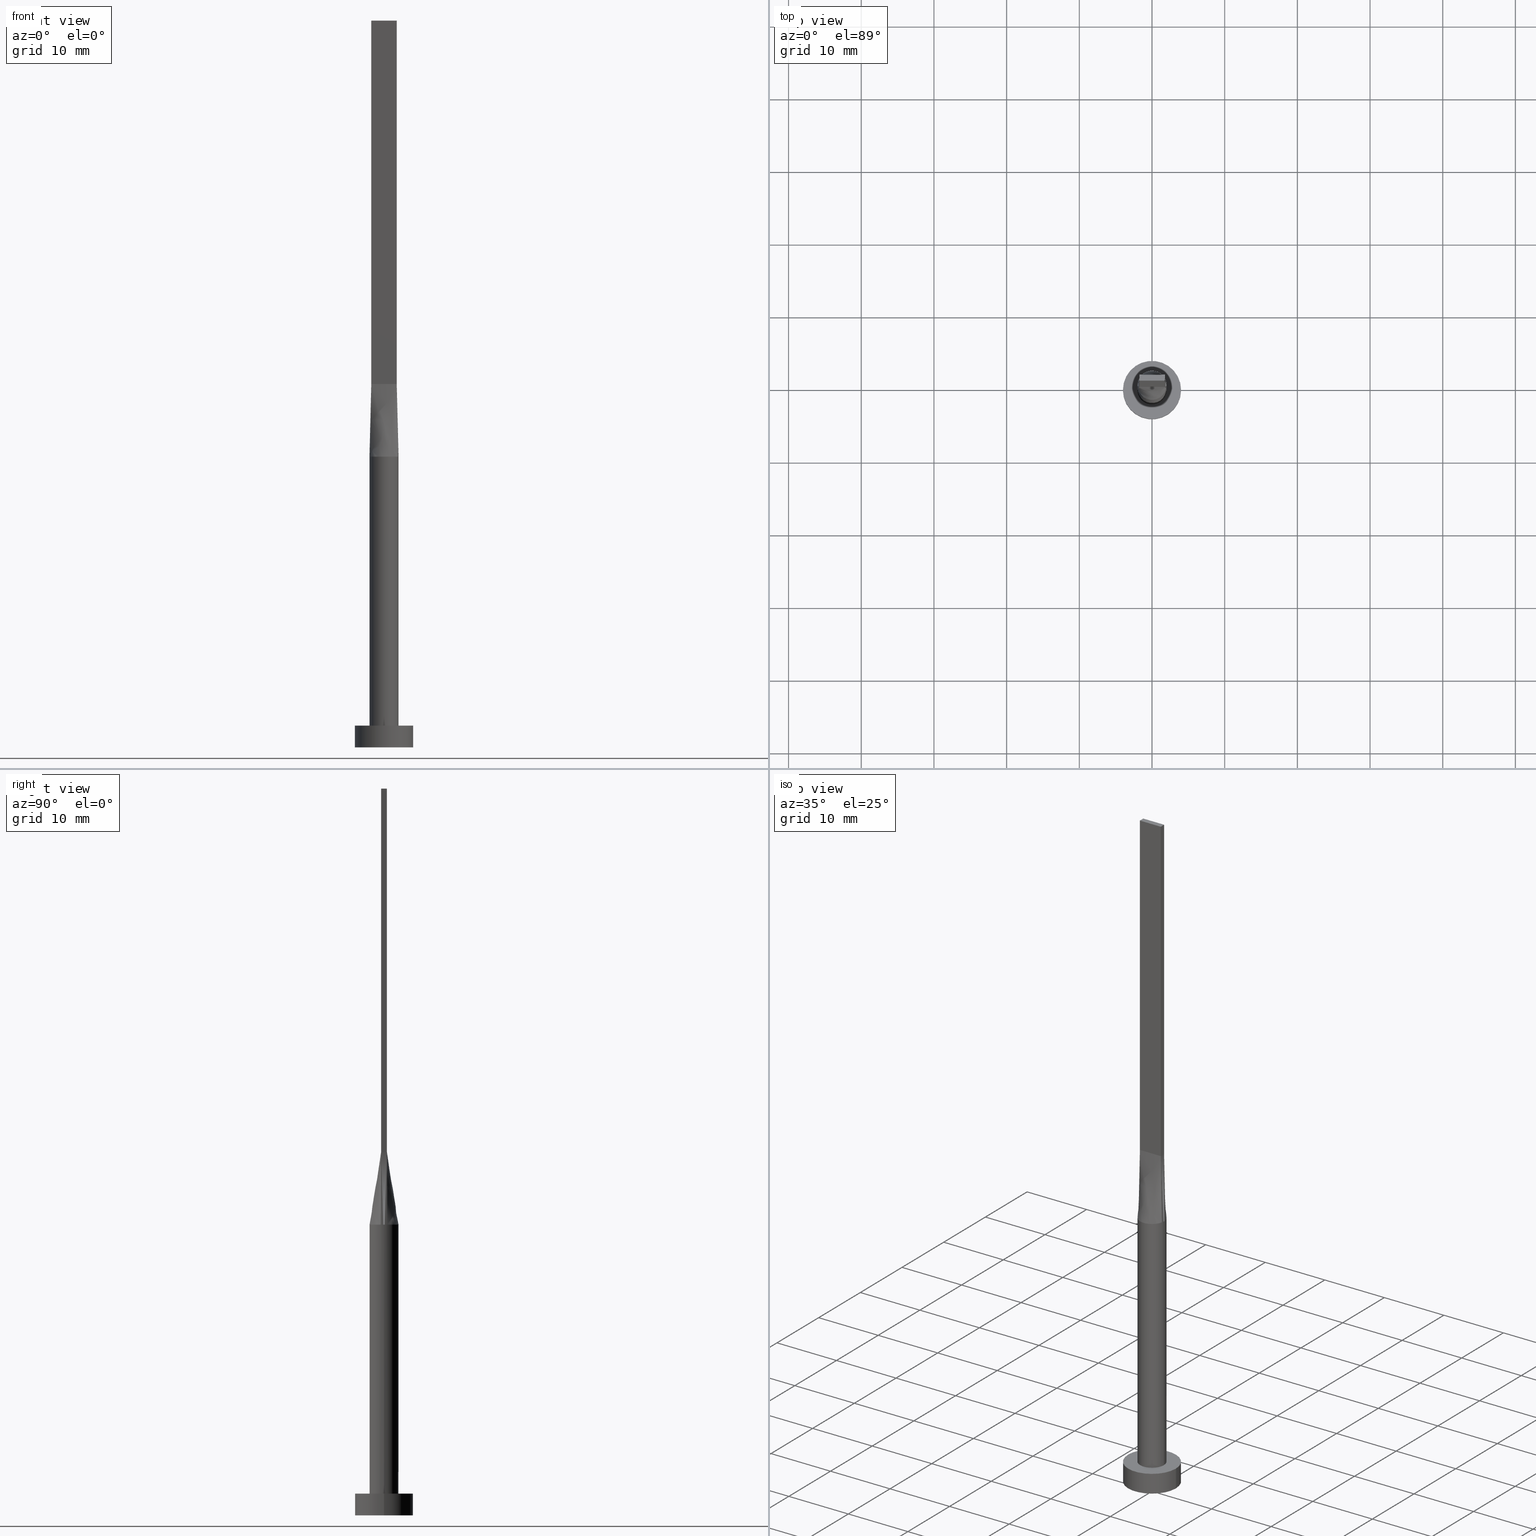
[diagram: canonical four-view strip — front | top / right | iso, engineering-drawing reading convention]
A machine part, canonical four-view strip (front | top / right | iso — engineering-drawing reading convention). The complete STEP part file that produces these views, byte-faithful:
ISO-10303-21;
HEADER;
FILE_DESCRIPTION (( 'STEP AP203' ),
    '1' );
FILE_NAME ('ae8e.STEP',
    '2026-02-12T09:07:10',
    ( '' ),
    ( '' ),
    'SwSTEP 2.0',
    'SolidWorks 2019',
    '' );
FILE_SCHEMA (( 'CONFIG_CONTROL_DESIGN' ));
ENDSEC;

DATA;
#1 = VECTOR ( 'NONE', #144, 1000.000000000000114 ) ;
#2 = CC_DESIGN_APPROVAL ( #551, ( #561 ) ) ;
#3 = CYLINDRICAL_SURFACE ( 'NONE', #318, 2.000000000000000000 ) ;
#4 = CARTESIAN_POINT ( 'NONE',  ( -1.750000000000000000, -0.3999999999999996891, 50.00000000000000000 ) ) ;
#5 = CARTESIAN_POINT ( 'NONE',  ( 0.000000000000000000, 0.000000000000000000, 100.0000000000000000 ) ) ;
#6 = CARTESIAN_POINT ( 'NONE',  ( 4.000000000000000000, 4.898587196589412829E-16, 0.000000000000000000 ) ) ;
#7 = PRODUCT_DEFINITION ( 'NEZN�M�', '', #388, #333 ) ;
#8 = CARTESIAN_POINT ( 'NONE',  ( 1.982817607920046798, 0.3008345008579150770, 40.00000000000000000 ) ) ;
#9 = CARTESIAN_POINT ( 'NONE',  ( 1.949907982895221048, -0.4456935569447296186, 40.00000000000000000 ) ) ;
#10 = AXIS2_PLACEMENT_3D ( 'NONE', #153, #330, #568 ) ;
#11 = CARTESIAN_POINT ( 'NONE',  ( -1.749999999999999778, 0.4000000000000003553, 50.00000000000000000 ) ) ;
#12 = CARTESIAN_POINT ( 'NONE',  ( 0.7291666666666676289, -0.3999999999999997446, 50.00000000000000000 ) ) ;
#13 = CARTESIAN_POINT ( 'NONE',  ( 1.749999999999999778, 0.1333333333333336645, 50.00000000000000000 ) ) ;
#14 = DIRECTION ( 'NONE',  ( 0.000000000000000000, 0.000000000000000000, 1.000000000000000000 ) ) ;
#15 = EDGE_CURVE ( 'NONE', #493, #566, #306, .T. ) ;
#16 = CARTESIAN_POINT ( 'NONE',  ( 0.2916666666666679064, -0.3999999999999997446, 50.00000000000000000 ) ) ;
#17 = CARTESIAN_POINT ( 'NONE',  ( -1.982817607920047243, -0.3008345008579154101, 40.00000000000000000 ) ) ;
#18 = DIRECTION ( 'NONE',  ( -0.000000000000000000, -0.000000000000000000, -1.000000000000000000 ) ) ;
#19 = AXIS2_PLACEMENT_3D ( 'NONE', #369, #71, #29 ) ;
#20 = AXIS2_PLACEMENT_3D ( 'NONE', #456, #324, #458 ) ;
#21 = CYLINDRICAL_SURFACE ( 'NONE', #133, 2.000000000000000000 ) ;
#22 = PERSON_AND_ORGANIZATION ( #246, #436 ) ;
#23 = PERSON_AND_ORGANIZATION_ROLE ( 'classification_officer' ) ;
#24 = ORIENTED_EDGE ( 'NONE', *, *, #416, .T. ) ;
#25 = CYLINDRICAL_SURFACE ( 'NONE', #294, 4.000000000000000000 ) ;
#26 = ORIENTED_EDGE ( 'NONE', *, *, #130, .T. ) ;
#27 = CARTESIAN_POINT ( 'NONE',  ( -1.542259513637947999, 1.293837904363075442, 40.00000000000000000 ) ) ;
#28 = CC_DESIGN_DATE_AND_TIME_ASSIGNMENT ( #485, #304, ( #7 ) ) ;
#29 = DIRECTION ( 'NONE',  ( 1.000000000000000000, 0.000000000000000000, -0.000000000000000000 ) ) ;
#30 = DIRECTION ( 'NONE',  ( 0.000000000000000000, 0.000000000000000000, 1.000000000000000000 ) ) ;
#31 = ORIENTED_EDGE ( 'NONE', *, *, #111, .F. ) ;
#32 = DIRECTION ( 'NONE',  ( -0.000000000000000000, -0.000000000000000000, -1.000000000000000000 ) ) ;
#33 = CARTESIAN_POINT ( 'NONE',  ( -1.949717013143734468, 0.4456496030042821910, 40.00000000000000000 ) ) ;
#34 = EDGE_LOOP ( 'NONE', ( #355, #497, #78, #47 ) ) ;
#35 = DIRECTION ( 'NONE',  ( 0.000000000000000000, 0.000000000000000000, 1.000000000000000000 ) ) ;
#36 = EDGE_CURVE ( 'NONE', #79, #67, #258, .T. ) ;
#37 = CARTESIAN_POINT ( 'NONE',  ( -1.750000000000000000, -0.3999999999999996891, 100.0000000000000000 ) ) ;
#38 = ORIENTED_EDGE ( 'NONE', *, *, #329, .F. ) ;
#39 = CARTESIAN_POINT ( 'NONE',  ( -1.002818635501954381, 1.749193953526918532, 40.00000000000000711 ) ) ;
#40 = ORIENTED_EDGE ( 'NONE', *, *, #463, .F. ) ;
#41 = CIRCLE ( 'NONE', #442, 4.000000000000000000 ) ;
#42 = CARTESIAN_POINT ( 'NONE',  ( -1.209404336647713851, 1.609323485403446830, 40.00000000000000000 ) ) ;
#43 = CARTESIAN_POINT ( 'NONE',  ( 1.458333333333332593, 0.4000000000000003553, 50.00000000000000000 ) ) ;
#44 = CALENDAR_DATE ( 2026, 12, 2 ) ;
#45 = EDGE_CURVE ( 'NONE', #346, #575, #207, .T. ) ;
#46 = CARTESIAN_POINT ( 'NONE',  ( -1.854458107241758746, 0.7741483657718513101, 40.00000000000000000 ) ) ;
#47 = ORIENTED_EDGE ( 'NONE', *, *, #240, .T. ) ;
#48 = VECTOR ( 'NONE', #366, 1000.000000000000000 ) ;
#49 = UNCERTAINTY_MEASURE_WITH_UNIT (LENGTH_MEASURE( 1.000000000000000082E-05 ), #564, 'distance_accuracy_value', 'NONE');
#50 = CARTESIAN_POINT ( 'NONE',  ( 0.000000000000000000, 0.000000000000000000, 40.00000000000000000 ) ) ;
#51 = APPLICATION_CONTEXT ( 'configuration controlled 3d designs of mechanical parts and assemblies' ) ;
#52 = CARTESIAN_POINT ( 'NONE',  ( 0.1458333333333345638, -0.3999999999999997446, 50.00000000000000711 ) ) ;
#53 = FACE_OUTER_BOUND ( 'NONE', #492, .T. ) ;
#54 = CARTESIAN_POINT ( 'NONE',  ( 1.982817607920046798, -0.3008345008579155211, 40.00000000000000000 ) ) ;
#55 = CARTESIAN_POINT ( 'NONE',  ( 1.458333333333333703, -0.3999999999999997446, 50.00000000000000000 ) ) ;
#56 = CIRCLE ( 'NONE', #277, 2.000000000000000000 ) ;
#57 = CARTESIAN_POINT ( 'NONE',  ( -1.749999999999999778, 0.1333333333333336645, 50.00000000000000000 ) ) ;
#58 = CIRCLE ( 'NONE', #122, 2.000000000000000000 ) ;
#59 = CARTESIAN_POINT ( 'NONE',  ( -1.949896596863728293, 0.4456908869437610776, 40.00000000000000000 ) ) ;
#60 = CARTESIAN_POINT ( 'NONE',  ( 1.166666666666667407, -0.3999999999999997446, 50.00000000000000000 ) ) ;
#61 = PLANE ( 'NONE',  #20 ) ;
#62 = AXIS2_PLACEMENT_3D ( 'NONE', #120, #131, #256 ) ;
#63 = PERSON_AND_ORGANIZATION_ROLE ( 'creator' ) ;
#64 = DIRECTION ( 'NONE',  ( 0.000000000000000000, -0.000000000000000000, -1.000000000000000000 ) ) ;
#65 = DIRECTION ( 'NONE',  ( 1.000000000000000000, 0.000000000000000000, 0.000000000000000000 ) ) ;
#66 = PERSON_AND_ORGANIZATION ( #246, #436 ) ;
#67 = VERTEX_POINT ( 'NONE', #392 ) ;
#68 = DIRECTION ( 'NONE',  ( -0.01996751149463110026, 0.004564002627344216668, 0.9997902121768992290 ) ) ;
#69 = ADVANCED_FACE ( 'NONE', ( #565 ), #25, .T. ) ;
#70 = CARTESIAN_POINT ( 'NONE',  ( -1.604166666666666519, -0.3999999999999996891, 50.00000000000000000 ) ) ;
#71 = DIRECTION ( 'NONE',  ( 0.000000000000000000, 0.000000000000000000, 1.000000000000000000 ) ) ;
#72 = DIRECTION ( 'NONE',  ( -2.710505431213761085E-16, 1.000000000000000000, -0.000000000000000000 ) ) ;
#73 = ORIENTED_EDGE ( 'NONE', *, *, #240, .F. ) ;
#74 = ORIENTED_EDGE ( 'NONE', *, *, #205, .F. ) ;
#75 = CARTESIAN_POINT ( 'NONE',  ( -1.604166666666666519, 0.4000000000000004108, 50.00000000000000000 ) ) ;
#76 = CARTESIAN_POINT ( 'NONE',  ( 0.000000000000000000, 0.000000000000000000, 3.000000000000000000 ) ) ;
#77 = PERSON_AND_ORGANIZATION ( #246, #436 ) ;
#78 = ORIENTED_EDGE ( 'NONE', *, *, #145, .F. ) ;
#79 = VERTEX_POINT ( 'NONE', #336 ) ;
#80 = VECTOR ( 'NONE', #543, 1000.000000000000000 ) ;
#81 = APPROVAL_DATE_TIME ( #499, #551 ) ;
#82 = CARTESIAN_POINT ( 'NONE',  ( 0.000000000000000000, 0.000000000000000000, 3.000000000000000000 ) ) ;
#83 = ORIENTED_EDGE ( 'NONE', *, *, #567, .T. ) ;
#84 = CARTESIAN_POINT ( 'NONE',  ( 0.000000000000000000, 0.000000000000000000, 40.00000000000000000 ) ) ;
#85 = CARTESIAN_POINT ( 'NONE',  ( 1.949877516600953875, 0.4456865912299994847, 40.00000000000000000 ) ) ;
#86 = CC_DESIGN_DATE_AND_TIME_ASSIGNMENT ( #448, #181, ( #561 ) ) ;
#87 = ORIENTED_EDGE ( 'NONE', *, *, #103, .F. ) ;
#88 = CARTESIAN_POINT ( 'NONE',  ( 0.2916666666666662966, 0.4000000000000004108, 50.00000000000000711 ) ) ;
#89 = DIRECTION ( 'NONE',  ( -0.000000000000000000, -0.000000000000000000, -1.000000000000000000 ) ) ;
#90 = CARTESIAN_POINT ( 'NONE',  ( 1.854458107241759190, 0.7741483657718509770, 40.00000000000000711 ) ) ;
#91 = ORIENTED_EDGE ( 'NONE', *, *, #526, .T. ) ;
#92 = CARTESIAN_POINT ( 'NONE',  ( -0.5307032259479420588, 1.945168061822314609, 40.00000000000001421 ) ) ;
#93 = VECTOR ( 'NONE', #18, 1000.000000000000000 ) ;
#94 = CARTESIAN_POINT ( 'NONE',  ( 1.002818635501954603, 1.749193953526918088, 40.00000000000000711 ) ) ;
#95 = ORIENTED_EDGE ( 'NONE', *, *, #103, .T. ) ;
#96 = ADVANCED_FACE ( 'NONE', ( #382 ), #386, .F. ) ;
#97 = CARTESIAN_POINT ( 'NONE',  ( 1.949877516600953875, 0.4456865912299994847, 40.00000000000000000 ) ) ;
#98 = CARTESIAN_POINT ( 'NONE',  ( -1.849858506571867345, -0.4228248015021409678, 45.00000000000000000 ) ) ;
#99 = CALENDAR_DATE ( 2026, 12, 2 ) ;
#100 = CARTESIAN_POINT ( 'NONE',  ( -1.749999999999999778, 0.4000000000000003553, 50.00000000000000000 ) ) ;
#101 = VERTEX_POINT ( 'NONE', #487 ) ;
#102 = CIRCLE ( 'NONE', #62, 2.000000000000000000 ) ;
#103 = EDGE_CURVE ( 'NONE', #255, #344, #554, .T. ) ;
#104 = PLANE ( 'NONE',  #112 ) ;
#105 = DIRECTION ( 'NONE',  ( -0.000000000000000000, -0.000000000000000000, -1.000000000000000000 ) ) ;
#106 = CARTESIAN_POINT ( 'NONE',  ( 1.949717013143734690, 0.4456496030042815248, 40.00000000000000000 ) ) ;
#107 = CARTESIAN_POINT ( 'NONE',  ( -1.002818635501955047, -1.749193953526917866, 40.00000000000000711 ) ) ;
#108 = CARTESIAN_POINT ( 'NONE',  ( 1.002818635501955047, -1.749193953526917866, 40.00000000000000711 ) ) ;
#109 = DIRECTION ( 'NONE',  ( 1.000000000000000000, 0.000000000000000000, 0.000000000000000000 ) ) ;
#110 = LINE ( 'NONE', #279, #498 ) ;
#111 = EDGE_CURVE ( 'NONE', #525, #488, #527, .T. ) ;
#112 = AXIS2_PLACEMENT_3D ( 'NONE', #537, #282, #542 ) ;
#113 = CARTESIAN_POINT ( 'NONE',  ( -4.000000000000000000, 0.000000000000000000, 3.000000000000000000 ) ) ;
#114 = LINE ( 'NONE', #159, #191 ) ;
#115 = COORDINATED_UNIVERSAL_TIME_OFFSET ( 1, 0, .AHEAD. ) ;
#116 = CARTESIAN_POINT ( 'NONE',  ( 1.749999999999999778, 0.4000000000000003553, 100.0000000000000000 ) ) ;
#117 = DIRECTION ( 'NONE',  ( -1.000000000000000000, 0.000000000000000000, 0.000000000000000000 ) ) ;
#118 = EDGE_CURVE ( 'NONE', #302, #454, #132, .T. ) ;
#119 = ORIENTED_EDGE ( 'NONE', *, *, #374, .T. ) ;
#120 = CARTESIAN_POINT ( 'NONE',  ( 0.000000000000000000, 0.000000000000000000, 40.00000000000000000 ) ) ;
#121 = ORIENTED_EDGE ( 'NONE', *, *, #338, .T. ) ;
#122 = AXIS2_PLACEMENT_3D ( 'NONE', #253, #259, #339 ) ;
#123 = APPROVAL_ROLE ( '' ) ;
#124 = ORIENTED_EDGE ( 'NONE', *, *, #303, .T. ) ;
#125 = CARTESIAN_POINT ( 'NONE',  ( -1.020833333333333259, 0.4000000000000004108, 50.00000000000000000 ) ) ;
#126 = PERSON_AND_ORGANIZATION ( #246, #436 ) ;
#127 = ORIENTED_EDGE ( 'NONE', *, *, #139, .F. ) ;
#128 = ORIENTED_EDGE ( 'NONE', *, *, #118, .T. ) ;
#129 = CARTESIAN_POINT ( 'NONE',  ( -1.002818635501954381, 1.749193953526918532, 40.00000000000000711 ) ) ;
#130 = EDGE_CURVE ( 'NONE', #346, #270, #102, .T. ) ;
#131 = DIRECTION ( 'NONE',  ( 0.000000000000000000, 0.000000000000000000, 1.000000000000000000 ) ) ;
#132 = CIRCLE ( 'NONE', #452, 2.000000000000000000 ) ;
#133 = AXIS2_PLACEMENT_3D ( 'NONE', #552, #161, #405 ) ;
#134 = ORIENTED_EDGE ( 'NONE', *, *, #15, .T. ) ;
#135 = CARTESIAN_POINT ( 'NONE',  ( 1.604166666666665630, 0.4000000000000003553, 50.00000000000000000 ) ) ;
#136 = CARTESIAN_POINT ( 'NONE',  ( -0.2657394870669756437, 1.999999999999999556, 39.99999999999999289 ) ) ;
#137 = DIRECTION ( 'NONE',  ( -0.000000000000000000, -0.000000000000000000, -1.000000000000000000 ) ) ;
#138 = CARTESIAN_POINT ( 'NONE',  ( 0.7291666666666661856, 0.4000000000000004108, 50.00000000000000711 ) ) ;
#139 = EDGE_CURVE ( 'NONE', #494, #101, #41, .T. ) ;
#140 = ORIENTED_EDGE ( 'NONE', *, *, #45, .F. ) ;
#141 = CIRCLE ( 'NONE', #288, 2.000000000000000000 ) ;
#142 = APPROVAL_PERSON_ORGANIZATION ( #232, #551, #569 ) ;
#143 = EDGE_LOOP ( 'NONE', ( #221, #385, #321, #562 ) ) ;
#144 = DIRECTION ( 'NONE',  ( -0.01996751149463110026, -0.004564002627344275649, -0.9997902121768992290 ) ) ;
#145 = EDGE_CURVE ( 'NONE', #566, #488, #114, .T. ) ;
#146 = CARTESIAN_POINT ( 'NONE',  ( 1.750000000000000000, -0.3999999999999996891, 100.0000000000000000 ) ) ;
#147 = FACE_BOUND ( 'NONE', #438, .T. ) ;
#148 = CARTESIAN_POINT ( 'NONE',  ( -1.209404336647714739, -1.609323485403446607, 39.99999999999998579 ) ) ;
#149 = CARTESIAN_POINT ( 'NONE',  ( 1.209404336647714517, -1.609323485403446385, 40.00000000000000000 ) ) ;
#150 = LINE ( 'NONE', #203, #93 ) ;
#151 = FACE_OUTER_BOUND ( 'NONE', #397, .T. ) ;
#152 = EDGE_CURVE ( 'NONE', #101, #494, #519, .T. ) ;
#153 = CARTESIAN_POINT ( 'NONE',  ( 0.000000000000000000, 0.000000000000000000, 3.000000000000000000 ) ) ;
#154 = VECTOR ( 'NONE', #261, 1000.000000000000000 ) ;
#155 = CARTESIAN_POINT ( 'NONE',  ( 1.750000000000000000, -0.3999999999999996891, 50.00000000000000000 ) ) ;
#156 = AXIS2_PLACEMENT_3D ( 'NONE', #116, #476, #64 ) ;
#157 = VECTOR ( 'NONE', #72, 1000.000000000000000 ) ;
#158 = PERSON_AND_ORGANIZATION_ROLE ( 'design_owner' ) ;
#159 = CARTESIAN_POINT ( 'NONE',  ( -1.750000000000000000, -0.3999999999999996891, 50.00000000000000000 ) ) ;
#160 = ADVANCED_FACE ( 'NONE', ( #53 ), #269, .T. ) ;
#161 = DIRECTION ( 'NONE',  ( -0.000000000000000000, -0.000000000000000000, -1.000000000000000000 ) ) ;
#162 =( NAMED_UNIT ( * ) PLANE_ANGLE_UNIT ( ) SI_UNIT ( $, .RADIAN. ) );
#163 = CARTESIAN_POINT ( 'NONE',  ( 0.000000000000000000, 0.000000000000000000, 3.000000000000000000 ) ) ;
#164 = AXIS2_PLACEMENT_3D ( 'NONE', #82, #220, #166 ) ;
#165 = FACE_OUTER_BOUND ( 'NONE', #400, .T. ) ;
#166 = DIRECTION ( 'NONE',  ( 1.000000000000000000, 0.000000000000000000, 0.000000000000000000 ) ) ;
#167 = CARTESIAN_POINT ( 'NONE',  ( -1.166666666666666519, 0.4000000000000004108, 50.00000000000000000 ) ) ;
#168 = VECTOR ( 'NONE', #117, 1000.000000000000000 ) ;
#169 = VECTOR ( 'NONE', #105, 1000.000000000000000 ) ;
#170 = CARTESIAN_POINT ( 'NONE',  ( -1.669156890509896796, -1.119033439449083733, 40.00000000000000000 ) ) ;
#171 = CARTESIAN_POINT ( 'NONE',  ( 0.000000000000000000, 0.000000000000000000, 0.000000000000000000 ) ) ;
#172 = ORIENTED_EDGE ( 'NONE', *, *, #15, .F. ) ;
#173 = CARTESIAN_POINT ( 'NONE',  ( -1.750000000000000000, -0.3999999999999996891, 100.0000000000000000 ) ) ;
#174 = ORIENTED_EDGE ( 'NONE', *, *, #198, .F. ) ;
#175 = CALENDAR_DATE ( 2026, 12, 2 ) ;
#176 = PRODUCT_RELATED_PRODUCT_CATEGORY ( 'detail', '', ( #178 ) ) ;
#177 = ORIENTED_EDGE ( 'NONE', *, *, #36, .T. ) ;
#178 = PRODUCT ( 'ae8e', 'ae8e', '', ( #420 ) ) ;
#179 = CARTESIAN_POINT ( 'NONE',  ( -1.669156890509896796, 1.119033439449084399, 40.00000000000000000 ) ) ;
#180 = EDGE_CURVE ( 'NONE', #270, #454, #150, .T. ) ;
#181 = DATE_TIME_ROLE ( 'classification_date' ) ;
#182 = ORIENTED_EDGE ( 'NONE', *, *, #186, .T. ) ;
#183 = B_SPLINE_SURFACE_WITH_KNOTS ( 'NONE', 3, 1, ( 
 ( #188, #415 ),
 ( #54, #280 ),
 ( #457, #237 ),
 ( #407, #13 ),
 ( #8, #506 ),
 ( #106, #283 ) ),
 .UNSPECIFIED., .F., .F., .F.,
 ( 4, 2, 4 ),
 ( 2, 2 ),
 ( 0.000000000000000000, 0.5000000000000000000, 1.000000000000000000 ),
 ( 0.000000000000000000, 1.000000000000000000 ),
 .UNSPECIFIED. ) ;
#184 = CARTESIAN_POINT ( 'NONE',  ( 0.5833333333333328152, 0.4000000000000004108, 50.00000000000000711 ) ) ;
#185 = CIRCLE ( 'NONE', #331, 2.000000000000000000 ) ;
#186 = EDGE_CURVE ( 'NONE', #344, #443, #379, .T. ) ;
#187 = CARTESIAN_POINT ( 'NONE',  ( 0.5833333333333344806, -0.3999999999999997446, 50.00000000000000000 ) ) ;
#188 = CARTESIAN_POINT ( 'NONE',  ( 1.949717013143734690, -0.4456496030042819689, 40.00000000000000000 ) ) ;
#189 = LINE ( 'NONE', #100, #377 ) ;
#190 = LINE ( 'NONE', #512, #169 ) ;
#191 = VECTOR ( 'NONE', #469, 1000.000000000000000 ) ;
#192 = VECTOR ( 'NONE', #200, 1000.000000000000000 ) ;
#193 = DIRECTION ( 'NONE',  ( -1.000000000000000000, -2.710505431213761085E-16, 0.000000000000000000 ) ) ;
#194 = CC_DESIGN_SECURITY_CLASSIFICATION ( #561, ( #388 ) ) ;
#195 = ADVANCED_BREP_SHAPE_REPRESENTATION ( 'ae8e', ( #208, #300 ), #243 ) ;
#196 = CARTESIAN_POINT ( 'NONE',  ( -1.749999999999999778, 0.4000000000000003553, 100.0000000000000000 ) ) ;
#197 = PLANE ( 'NONE',  #19 ) ;
#198 = EDGE_CURVE ( 'NONE', #317, #575, #409, .T. ) ;
#199 = LINE ( 'NONE', #202, #532 ) ;
#200 = DIRECTION ( 'NONE',  ( -2.710505431213761085E-16, -1.000000000000000000, 0.000000000000000000 ) ) ;
#201 = CARTESIAN_POINT ( 'NONE',  ( 1.749999999999999778, 0.4000000000000003553, 100.0000000000000000 ) ) ;
#202 = CARTESIAN_POINT ( 'NONE',  ( 1.849858506571867123, 0.4228248015021409678, 45.00000000000000000 ) ) ;
#203 = CARTESIAN_POINT ( 'NONE',  ( -2.000000000000000000, 0.000000000000000000, 40.00000000000000000 ) ) ;
#204 = COORDINATED_UNIVERSAL_TIME_OFFSET ( 1, 0, .AHEAD. ) ;
#205 = EDGE_CURVE ( 'NONE', #443, #493, #510, .T. ) ;
#206 = PERSON_AND_ORGANIZATION_ROLE ( 'design_supplier' ) ;
#207 = LINE ( 'NONE', #518, #579 ) ;
#208 = MANIFOLD_SOLID_BREP ( 'P�idat vysunut�m5', #544 ) ;
#209 = CARTESIAN_POINT ( 'NONE',  ( -1.542259513637948887, -1.293837904363074331, 40.00000000000000000 ) ) ;
#210 = COORDINATED_UNIVERSAL_TIME_OFFSET ( 1, 0, .AHEAD. ) ;
#211 = ORIENTED_EDGE ( 'NONE', *, *, #526, .F. ) ;
#212 = LINE ( 'NONE', #308, #466 ) ;
#213 = DIRECTION ( 'NONE',  ( 1.000000000000000000, 0.000000000000000000, 0.000000000000000000 ) ) ;
#214 = ORIENTED_EDGE ( 'NONE', *, *, #416, .F. ) ;
#215 = CARTESIAN_POINT ( 'NONE',  ( 0.000000000000000000, 0.000000000000000000, 3.000000000000000000 ) ) ;
#216 = CARTESIAN_POINT ( 'NONE',  ( -1.749999999999999778, 0.4000000000000003553, 50.00000000000000000 ) ) ;
#217 = EDGE_CURVE ( 'NONE', #67, #494, #286, .T. ) ;
#218 = ORIENTED_EDGE ( 'NONE', *, *, #567, .F. ) ;
#219 = DIRECTION ( 'NONE',  ( 1.000000000000000000, 0.000000000000000000, 0.000000000000000000 ) ) ;
#220 = DIRECTION ( 'NONE',  ( 0.000000000000000000, 0.000000000000000000, 1.000000000000000000 ) ) ;
#221 = ORIENTED_EDGE ( 'NONE', *, *, #217, .F. ) ;
#222 = CARTESIAN_POINT ( 'NONE',  ( 0.5307032259479425029, 1.945168061822314165, 40.00000000000000711 ) ) ;
#223 = CARTESIAN_POINT ( 'NONE',  ( -1.542259513637947999, 1.293837904363075442, 40.00000000000000000 ) ) ;
#224 = ORIENTED_EDGE ( 'NONE', *, *, #130, .F. ) ;
#225 = CARTESIAN_POINT ( 'NONE',  ( 0.1458333333333330373, 0.4000000000000004108, 50.00000000000000711 ) ) ;
#226 = EDGE_CURVE ( 'NONE', #67, #79, #367, .T. ) ;
#227 = CARTESIAN_POINT ( 'NONE',  ( 1.949717013143734468, 0.4456496030042822465, 40.00000000000000000 ) ) ;
#228 = CARTESIAN_POINT ( 'NONE',  ( 1.209404336647714073, 1.609323485403446830, 39.99999999999998579 ) ) ;
#229 = ORIENTED_EDGE ( 'NONE', *, *, #514, .T. ) ;
#230 = CARTESIAN_POINT ( 'NONE',  ( -1.913513237607142647, 0.6040411209768712375, 40.00000000000000000 ) ) ;
#231 = EDGE_CURVE ( 'NONE', #299, #346, #464, .T. ) ;
#232 = PERSON_AND_ORGANIZATION ( #246, #436 ) ;
#233 = EDGE_LOOP ( 'NONE', ( #429, #435, #262, #134 ) ) ;
#234 = AXIS2_PLACEMENT_3D ( 'NONE', #460, #241, #410 ) ;
#235 = ORIENTED_EDGE ( 'NONE', *, *, #303, .F. ) ;
#236 = DIRECTION ( 'NONE',  ( 0.000000000000000000, 0.000000000000000000, 1.000000000000000000 ) ) ;
#237 = CARTESIAN_POINT ( 'NONE',  ( 1.749999999999999778, -0.1333333333333330262, 50.00000000000000000 ) ) ;
#238 = LINE ( 'NONE', #113, #271 ) ;
#239 = CARTESIAN_POINT ( 'NONE',  ( -1.999367905308203186, 0.1504172504289580936, 40.00000000000000000 ) ) ;
#240 = EDGE_CURVE ( 'NONE', #566, #340, #446, .T. ) ;
#241 = DIRECTION ( 'NONE',  ( 0.000000000000000000, 0.000000000000000000, 1.000000000000000000 ) ) ;
#242 = CARTESIAN_POINT ( 'NONE',  ( -2.000000000000000000, 0.000000000000000000, 3.000000000000000000 ) ) ;
#243 =( GEOMETRIC_REPRESENTATION_CONTEXT ( 3 ) GLOBAL_UNCERTAINTY_ASSIGNED_CONTEXT ( ( #49 ) ) GLOBAL_UNIT_ASSIGNED_CONTEXT ( ( #564, #162, #521 ) ) REPRESENTATION_CONTEXT ( 'NONE', 'WORKASPACE' ) );
#244 = DIRECTION ( 'NONE',  ( -1.000000000000000000, -0.000000000000000000, -0.000000000000000000 ) ) ;
#245 = CARTESIAN_POINT ( 'NONE',  ( 1.749999999999999778, 0.4000000000000003553, 50.00000000000000000 ) ) ;
#246 = PERSON ( 'NEUR�EN�', 'NEUR�EN�', 'NEUR�EN�', ('NEUR�EN�'), ('NEUR�EN�'), ('NEUR�EN�') ) ;
#247 = CARTESIAN_POINT ( 'NONE',  ( 1.750000000000000000, -0.3999999999999996891, 50.00000000000000000 ) ) ;
#248 = CARTESIAN_POINT ( 'NONE',  ( -1.949717013143734468, 0.4456496030042826351, 40.00000000000000000 ) ) ;
#249 = ADVANCED_FACE ( 'NONE', ( #323 ), #315, .T. ) ;
#250 = CARTESIAN_POINT ( 'NONE',  ( -1.749999999999999778, 0.4000000000000003553, 50.00000000000000000 ) ) ;
#251 = CARTESIAN_POINT ( 'NONE',  ( -1.458333333333333259, 0.4000000000000004108, 50.00000000000000000 ) ) ;
#252 = CARTESIAN_POINT ( 'NONE',  ( -1.949717013143734690, -0.4456496030042821355, 40.00000000000000000 ) ) ;
#253 = CARTESIAN_POINT ( 'NONE',  ( 0.000000000000000000, 0.000000000000000000, 40.00000000000000000 ) ) ;
#254 = CARTESIAN_POINT ( 'NONE',  ( -1.749999999999999778, 0.2666666666666669960, 50.00000000000000000 ) ) ;
#255 = VERTEX_POINT ( 'NONE', #419 ) ;
#256 = DIRECTION ( 'NONE',  ( 1.000000000000000000, 0.000000000000000000, 0.000000000000000000 ) ) ;
#257 = CARTESIAN_POINT ( 'NONE',  ( -1.209404336647713851, 1.609323485403446830, 40.00000000000000000 ) ) ;
#258 = CIRCLE ( 'NONE', #164, 4.000000000000000000 ) ;
#259 = DIRECTION ( 'NONE',  ( 0.000000000000000000, 0.000000000000000000, 1.000000000000000000 ) ) ;
#260 = ORIENTED_EDGE ( 'NONE', *, *, #217, .T. ) ;
#261 = DIRECTION ( 'NONE',  ( -2.710505431213761085E-16, 1.000000000000000000, 0.000000000000000000 ) ) ;
#262 = ORIENTED_EDGE ( 'NONE', *, *, #350, .F. ) ;
#263 = DIRECTION ( 'NONE',  ( -1.000000000000000000, 0.000000000000000000, 0.000000000000000000 ) ) ;
#264 = DIRECTION ( 'NONE',  ( -1.000000000000000000, 0.000000000000000000, 0.000000000000000000 ) ) ;
#265 = B_SPLINE_SURFACE_WITH_KNOTS ( 'NONE', 3, 1, ( 
 ( #449, #4 ),
 ( #422, #70 ),
 ( #481, #426 ),
 ( #170, #295 ),
 ( #209, #477 ),
 ( #148, #281 ),
 ( #107, #328 ),
 ( #370, #406 ),
 ( #536, #505 ),
 ( #470, #52 ),
 ( #540, #16 ),
 ( #108, #187 ),
 ( #149, #12 ),
 ( #363, #289 ),
 ( #511, #60 ),
 ( #285, #55 ),
 ( #468, #291 ),
 ( #503, #247 ) ),
 .UNSPECIFIED., .F., .F., .F.,
 ( 4, 2, 2, 2, 2, 2, 2, 2, 4 ),
 ( 2, 2 ),
 ( 0.000000000000000000, 0.1250000000000000000, 0.2500000000000000000, 0.3750000000000000000, 0.5000000000000000000, 0.6250000000000000000, 0.7500000000000000000, 0.8750000000000000000, 1.000000000000000000 ),
 ( 0.000000000000000000, 1.000000000000000000 ),
 .UNSPECIFIED. ) ;
#266 = ADVANCED_FACE ( 'NONE', ( #347 ), #516, .F. ) ;
#267 = CARTESIAN_POINT ( 'NONE',  ( 0.2657394870669761988, 1.999999999999999556, 39.99999999999999289 ) ) ;
#268 = CARTESIAN_POINT ( 'NONE',  ( 0.2657394870669761988, 1.999999999999999556, 39.99999999999999289 ) ) ;
#269 = B_SPLINE_SURFACE_WITH_KNOTS ( 'NONE', 3, 1, ( 
 ( #248, #292 ),
 ( #335, #254 ),
 ( #239, #57 ),
 ( #376, #418 ),
 ( #17, #472 ),
 ( #252, #414 ) ),
 .UNSPECIFIED., .F., .F., .F.,
 ( 4, 2, 4 ),
 ( 2, 2 ),
 ( 0.000000000000000000, 0.5000000000000000000, 1.000000000000000000 ),
 ( 0.000000000000000000, 1.000000000000000000 ),
 .UNSPECIFIED. ) ;
#270 = VERTEX_POINT ( 'NONE', #402 ) ;
#271 = VECTOR ( 'NONE', #325, 1000.000000000000000 ) ;
#272 = FACE_OUTER_BOUND ( 'NONE', #34, .T. ) ;
#273 = ORIENTED_EDGE ( 'NONE', *, *, #329, .T. ) ;
#274 = ADVANCED_FACE ( 'NONE', ( #502 ), #3, .T. ) ;
#275 = CARTESIAN_POINT ( 'NONE',  ( 1.209404336647714073, 1.609323485403446830, 39.99999999999998579 ) ) ;
#276 = AXIS2_PLACEMENT_3D ( 'NONE', #173, #380, #345 ) ;
#277 = AXIS2_PLACEMENT_3D ( 'NONE', #541, #14, #109 ) ;
#278 = AXIS2_PLACEMENT_3D ( 'NONE', #5, #368, #296 ) ;
#279 = CARTESIAN_POINT ( 'NONE',  ( 1.749999999999999778, 0.4000000000000003553, 100.0000000000000000 ) ) ;
#280 = CARTESIAN_POINT ( 'NONE',  ( 1.749999999999999778, -0.2666666666666663299, 50.00000000000000000 ) ) ;
#281 = CARTESIAN_POINT ( 'NONE',  ( -0.7291666666666657415, -0.3999999999999997446, 50.00000000000000711 ) ) ;
#282 = DIRECTION ( 'NONE',  ( 0.000000000000000000, 0.000000000000000000, 1.000000000000000000 ) ) ;
#283 = CARTESIAN_POINT ( 'NONE',  ( 1.749999999999999778, 0.4000000000000003553, 50.00000000000000000 ) ) ;
#284 = DIRECTION ( 'NONE',  ( 1.000000000000000000, 0.000000000000000000, 0.000000000000000000 ) ) ;
#285 = CARTESIAN_POINT ( 'NONE',  ( 1.854458107241758746, -0.7741483657718503109, 40.00000000000000000 ) ) ;
#286 = LINE ( 'NONE', #371, #80 ) ;
#287 = CARTESIAN_POINT ( 'NONE',  ( 0.000000000000000000, 0.000000000000000000, 40.00000000000000000 ) ) ;
#288 = AXIS2_PLACEMENT_3D ( 'NONE', #287, #465, #284 ) ;
#289 = CARTESIAN_POINT ( 'NONE',  ( 1.020833333333334147, -0.3999999999999997446, 50.00000000000000000 ) ) ;
#290 = DIRECTION ( 'NONE',  ( 0.000000000000000000, 0.000000000000000000, 1.000000000000000000 ) ) ;
#291 = CARTESIAN_POINT ( 'NONE',  ( 1.604166666666666963, -0.3999999999999997446, 50.00000000000000000 ) ) ;
#292 = CARTESIAN_POINT ( 'NONE',  ( -1.749999999999999778, 0.4000000000000003553, 50.00000000000000000 ) ) ;
#293 = CALENDAR_DATE ( 2026, 12, 2 ) ;
#294 = AXIS2_PLACEMENT_3D ( 'NONE', #215, #298, #556 ) ;
#295 = CARTESIAN_POINT ( 'NONE',  ( -1.166666666666665853, -0.3999999999999996891, 50.00000000000000000 ) ) ;
#296 = DIRECTION ( 'NONE',  ( 1.000000000000000000, 0.000000000000000000, -0.000000000000000000 ) ) ;
#297 = ORIENTED_EDGE ( 'NONE', *, *, #198, .T. ) ;
#298 = DIRECTION ( 'NONE',  ( -0.000000000000000000, -0.000000000000000000, -1.000000000000000000 ) ) ;
#299 = VERTEX_POINT ( 'NONE', #97 ) ;
#300 = AXIS2_PLACEMENT_3D ( 'NONE', #171, #30, #213 ) ;
#301 = ORIENTED_EDGE ( 'NONE', *, *, #350, .T. ) ;
#302 = VERTEX_POINT ( 'NONE', #447 ) ;
#303 = EDGE_CURVE ( 'NONE', #357, #302, #393, .T. ) ;
#304 = DATE_TIME_ROLE ( 'creation_date' ) ;
#305 = EDGE_LOOP ( 'NONE', ( #182, #440, #301, #95 ) ) ;
#306 = LINE ( 'NONE', #37, #359 ) ;
#307 = ORIENTED_EDGE ( 'NONE', *, *, #152, .F. ) ;
#308 = CARTESIAN_POINT ( 'NONE',  ( 1.750000000000000000, -0.3999999999999996891, 100.0000000000000000 ) ) ;
#309 = APPLICATION_PROTOCOL_DEFINITION ( 'international standard', 'config_control_design', 1994, #51 ) ;
#310 = CARTESIAN_POINT ( 'NONE',  ( 0.000000000000000000, 0.000000000000000000, 0.000000000000000000 ) ) ;
#311 = AXIS2_PLACEMENT_3D ( 'NONE', #76, #430, #263 ) ;
#312 = CC_DESIGN_PERSON_AND_ORGANIZATION_ASSIGNMENT ( #423, #158, ( #178 ) ) ;
#313 = EDGE_LOOP ( 'NONE', ( #522, #486, #87, #119 ) ) ;
#314 = CARTESIAN_POINT ( 'NONE',  ( 1.854458107241759190, 0.7741483657718509770, 40.00000000000000711 ) ) ;
#315 = B_SPLINE_SURFACE_WITH_KNOTS ( 'NONE', 3, 1, ( 
 ( #227, #352 ),
 ( #529, #135 ),
 ( #314, #43 ),
 ( #395, #573 ),
 ( #354, #530 ),
 ( #228, #138 ),
 ( #576, #184 ),
 ( #222, #88 ),
 ( #267, #225 ),
 ( #136, #316 ),
 ( #92, #480 ),
 ( #129, #513 ),
 ( #257, #471 ),
 ( #27, #125 ),
 ( #558, #167 ),
 ( #523, #251 ),
 ( #342, #75 ),
 ( #33, #216 ) ),
 .UNSPECIFIED., .F., .F., .F.,
 ( 4, 2, 2, 2, 2, 2, 2, 2, 4 ),
 ( 2, 2 ),
 ( 0.000000000000000000, 0.1250000000000000000, 0.2500000000000000000, 0.3750000000000000000, 0.5000000000000000000, 0.6250000000000000000, 0.7500000000000000000, 0.8750000000000000000, 1.000000000000000000 ),
 ( 0.000000000000000000, 1.000000000000000000 ),
 .UNSPECIFIED. ) ;
#316 = CARTESIAN_POINT ( 'NONE',  ( -0.1458333333333335369, 0.4000000000000004108, 50.00000000000000711 ) ) ;
#317 = VERTEX_POINT ( 'NONE', #245 ) ;
#318 = AXIS2_PLACEMENT_3D ( 'NONE', #84, #89, #264 ) ;
#319 = ORIENTED_EDGE ( 'NONE', *, *, #180, .T. ) ;
#320 = APPROVAL_STATUS ( 'not_yet_approved' ) ;
#321 = ORIENTED_EDGE ( 'NONE', *, *, #451, .T. ) ;
#322 = ADVANCED_FACE ( 'NONE', ( #504 ), #183, .T. ) ;
#323 = FACE_OUTER_BOUND ( 'NONE', #581, .T. ) ;
#324 = DIRECTION ( 'NONE',  ( 1.000000000000000000, -2.710505431213761085E-16, 0.000000000000000000 ) ) ;
#325 = DIRECTION ( 'NONE',  ( -0.000000000000000000, -0.000000000000000000, -1.000000000000000000 ) ) ;
#326 = DIRECTION ( 'NONE',  ( -0.01996751149463112454, -0.004564002627344150749, 0.9997902121768992290 ) ) ;
#327 = CARTESIAN_POINT ( 'NONE',  ( -1.750000000000000000, -0.3999999999999996891, 100.0000000000000000 ) ) ;
#328 = CARTESIAN_POINT ( 'NONE',  ( -0.5833333333333322601, -0.3999999999999997446, 50.00000000000000711 ) ) ;
#329 = EDGE_CURVE ( 'NONE', #270, #340, #559, .T. ) ;
#330 = DIRECTION ( 'NONE',  ( 0.000000000000000000, 0.000000000000000000, 1.000000000000000000 ) ) ;
#331 = AXIS2_PLACEMENT_3D ( 'NONE', #50, #236, #373 ) ;
#332 = DIRECTION ( 'NONE',  ( -0.000000000000000000, -0.000000000000000000, -1.000000000000000000 ) ) ;
#333 = DESIGN_CONTEXT ( 'detailed design', #51, 'design' ) ;
#334 = COORDINATED_UNIVERSAL_TIME_OFFSET ( 1, 0, .AHEAD. ) ;
#335 = CARTESIAN_POINT ( 'NONE',  ( -1.982817607920046798, 0.3008345008579159097, 40.00000000000000000 ) ) ;
#336 = CARTESIAN_POINT ( 'NONE',  ( -4.000000000000000000, 0.000000000000000000, 3.000000000000000000 ) ) ;
#337 = AXIS2_PLACEMENT_3D ( 'NONE', #517, #290, #459 ) ;
#338 = EDGE_CURVE ( 'NONE', #454, #302, #56, .T. ) ;
#339 = DIRECTION ( 'NONE',  ( 1.000000000000000000, -9.769962616701377556E-15, 0.000000000000000000 ) ) ;
#340 = VERTEX_POINT ( 'NONE', #411 ) ;
#341 = VECTOR ( 'NONE', #244, 1000.000000000000000 ) ;
#342 = CARTESIAN_POINT ( 'NONE',  ( -1.913513237607142647, 0.6040411209768712375, 40.00000000000000000 ) ) ;
#343 = APPLICATION_PROTOCOL_DEFINITION ( 'international standard', 'config_control_design', 1994, #571 ) ;
#344 = VERTEX_POINT ( 'NONE', #201 ) ;
#345 = DIRECTION ( 'NONE',  ( 0.000000000000000000, -0.000000000000000000, 1.000000000000000000 ) ) ;
#346 = VERTEX_POINT ( 'NONE', #59 ) ;
#347 = FACE_OUTER_BOUND ( 'NONE', #428, .T. ) ;
#348 = DATE_AND_TIME ( #293, #401 ) ;
#349 = CARTESIAN_POINT ( 'NONE',  ( 1.750000000000000000, -0.3999999999999996891, 100.0000000000000000 ) ) ;
#350 = EDGE_CURVE ( 'NONE', #493, #255, #372, .T. ) ;
#351 = ORIENTED_EDGE ( 'NONE', *, *, #186, .F. ) ;
#352 = CARTESIAN_POINT ( 'NONE',  ( 1.749999999999998890, 0.4000000000000003553, 50.00000000000000000 ) ) ;
#353 = CARTESIAN_POINT ( 'NONE',  ( 2.000000000000000000, 2.449293598294706414E-16, 40.00000000000000000 ) ) ;
#354 = CARTESIAN_POINT ( 'NONE',  ( 1.542259513637948443, 1.293837904363074998, 40.00000000000000000 ) ) ;
#355 = ORIENTED_EDGE ( 'NONE', *, *, #358, .T. ) ;
#356 = ORIENTED_EDGE ( 'NONE', *, *, #139, .T. ) ;
#357 = VERTEX_POINT ( 'NONE', #507 ) ;
#358 = EDGE_CURVE ( 'NONE', #340, #525, #141, .T. ) ;
#359 = VECTOR ( 'NONE', #32, 1000.000000000000000 ) ;
#360 = CARTESIAN_POINT ( 'NONE',  ( -0.5307032259479420588, 1.945168061822314609, 40.00000000000001421 ) ) ;
#361 = COORDINATED_UNIVERSAL_TIME_OFFSET ( 1, 0, .AHEAD. ) ;
#362 = ORIENTED_EDGE ( 'NONE', *, *, #358, .F. ) ;
#363 = CARTESIAN_POINT ( 'NONE',  ( 1.542259513637949109, -1.293837904363074331, 40.00000000000000000 ) ) ;
#364 = ADVANCED_FACE ( 'NONE', ( #461 ), #197, .F. ) ;
#365 = PLANE ( 'NONE',  #278 ) ;
#366 = DIRECTION ( 'NONE',  ( 1.000000000000000000, 0.000000000000000000, 0.000000000000000000 ) ) ;
#367 = CIRCLE ( 'NONE', #10, 4.000000000000000000 ) ;
#368 = DIRECTION ( 'NONE',  ( 0.000000000000000000, 0.000000000000000000, 1.000000000000000000 ) ) ;
#369 = CARTESIAN_POINT ( 'NONE',  ( 0.000000000000000000, 0.000000000000000000, 0.000000000000000000 ) ) ;
#370 = CARTESIAN_POINT ( 'NONE',  ( -0.5307032259479425029, -1.945168061822315275, 40.00000000000000711 ) ) ;
#371 = CARTESIAN_POINT ( 'NONE',  ( 4.000000000000000000, 4.898587196589412829E-16, 3.000000000000000000 ) ) ;
#372 = LINE ( 'NONE', #327, #48 ) ;
#373 = DIRECTION ( 'NONE',  ( 1.000000000000000000, 0.000000000000000000, 0.000000000000000000 ) ) ;
#374 = EDGE_CURVE ( 'NONE', #255, #488, #212, .T. ) ;
#375 = VECTOR ( 'NONE', #68, 1000.000000000000114 ) ;
#376 = CARTESIAN_POINT ( 'NONE',  ( -1.999367905308203630, -0.1504172504289575940, 40.00000000000000000 ) ) ;
#377 = VECTOR ( 'NONE', #453, 1000.000000000000000 ) ;
#378 = APPROVAL_STATUS ( 'not_yet_approved' ) ;
#379 = LINE ( 'NONE', #550, #168 ) ;
#380 = DIRECTION ( 'NONE',  ( 0.000000000000000000, 1.000000000000000000, 0.000000000000000000 ) ) ;
#381 = APPROVAL_DATE_TIME ( #524, #496 ) ;
#382 = FACE_OUTER_BOUND ( 'NONE', #233, .T. ) ;
#383 = CYLINDRICAL_SURFACE ( 'NONE', #311, 4.000000000000000000 ) ;
#384 = LINE ( 'NONE', #427, #157 ) ;
#385 = ORIENTED_EDGE ( 'NONE', *, *, #36, .F. ) ;
#386 = PLANE ( 'NONE',  #276 ) ;
#387 = ORIENTED_EDGE ( 'NONE', *, *, #118, .F. ) ;
#388 = PRODUCT_DEFINITION_FORMATION_WITH_SPECIFIED_SOURCE ( 'LIBOVOLN�', '', #178, .NOT_KNOWN. ) ;
#389 = PERSON_AND_ORGANIZATION ( #246, #436 ) ;
#390 = ORIENTED_EDGE ( 'NONE', *, *, #45, .T. ) ;
#391 = EDGE_LOOP ( 'NONE', ( #235, #218, #362, #38, #319, #121 ) ) ;
#392 = CARTESIAN_POINT ( 'NONE',  ( 4.000000000000000000, 4.898587196589412829E-16, 3.000000000000000000 ) ) ;
#393 = LINE ( 'NONE', #353, #491 ) ;
#394 = ORIENTED_EDGE ( 'NONE', *, *, #180, .F. ) ;
#395 = CARTESIAN_POINT ( 'NONE',  ( 1.669156890509896352, 1.119033439449084177, 40.00000000000000000 ) ) ;
#396 = ADVANCED_FACE ( 'NONE', ( #165 ), #383, .T. ) ;
#397 = EDGE_LOOP ( 'NONE', ( #24, #172, #74, #91 ) ) ;
#398 = CARTESIAN_POINT ( 'NONE',  ( 1.669156890509896352, 1.119033439449084177, 40.00000000000000000 ) ) ;
#399 = SHAPE_DEFINITION_REPRESENTATION ( #570, #195 ) ;
#400 = EDGE_LOOP ( 'NONE', ( #424, #260, #356, #534 ) ) ;
#401 = LOCAL_TIME ( 10, 7, 10.00000000000000000, #115 ) ;
#402 = CARTESIAN_POINT ( 'NONE',  ( -1.999683952654101704, -4.787247324473225831E-16, 40.00000000000000000 ) ) ;
#403 = FACE_OUTER_BOUND ( 'NONE', #305, .T. ) ;
#404 = ADVANCED_FACE ( 'NONE', ( #474 ), #21, .T. ) ;
#405 = DIRECTION ( 'NONE',  ( -1.000000000000000000, 0.000000000000000000, 0.000000000000000000 ) ) ;
#406 = CARTESIAN_POINT ( 'NONE',  ( -0.2916666666666655194, -0.3999999999999997446, 50.00000000000000711 ) ) ;
#407 = CARTESIAN_POINT ( 'NONE',  ( 1.999367905308202742, 0.1504172504289574275, 40.00000000000000000 ) ) ;
#408 = CARTESIAN_POINT ( 'NONE',  ( -1.750000000000000000, -0.3999999999999996891, 100.0000000000000000 ) ) ;
#409 = LINE ( 'NONE', #11, #341 ) ;
#410 = DIRECTION ( 'NONE',  ( 1.000000000000000000, 0.000000000000000000, 0.000000000000000000 ) ) ;
#411 = CARTESIAN_POINT ( 'NONE',  ( -1.949888833174281633, -0.4456892479726881628, 40.00000000000000000 ) ) ;
#412 = LOCAL_TIME ( 10, 7, 10.00000000000000000, #334 ) ;
#413 = DIRECTION ( 'NONE',  ( 2.710505431213761085E-16, -1.000000000000000000, 0.000000000000000000 ) ) ;
#414 = CARTESIAN_POINT ( 'NONE',  ( -1.750000000000000000, -0.3999999999999996891, 50.00000000000000000 ) ) ;
#415 = CARTESIAN_POINT ( 'NONE',  ( 1.750000000000000000, -0.3999999999999996891, 50.00000000000000000 ) ) ;
#416 = EDGE_CURVE ( 'NONE', #575, #566, #189, .T. ) ;
#417 = PLANE ( 'NONE',  #434 ) ;
#418 = CARTESIAN_POINT ( 'NONE',  ( -1.749999999999999778, -0.1333333333333329984, 50.00000000000000000 ) ) ;
#419 = CARTESIAN_POINT ( 'NONE',  ( 1.750000000000000000, -0.3999999999999996891, 100.0000000000000000 ) ) ;
#420 = MECHANICAL_CONTEXT ( 'NONE', #571, 'mechanical' ) ;
#421 = ADVANCED_FACE ( 'NONE', ( #272 ), #265, .T. ) ;
#422 = CARTESIAN_POINT ( 'NONE',  ( -1.913513237607142425, -0.6040411209768705714, 39.99999999999999289 ) ) ;
#423 = PERSON_AND_ORGANIZATION ( #246, #436 ) ;
#424 = ORIENTED_EDGE ( 'NONE', *, *, #226, .F. ) ;
#425 = DIRECTION ( 'NONE',  ( 0.01996751149463110026, -0.004564002627344216668, 0.9997902121768992290 ) ) ;
#426 = CARTESIAN_POINT ( 'NONE',  ( -1.458333333333332815, -0.3999999999999996891, 50.00000000000000000 ) ) ;
#427 = CARTESIAN_POINT ( 'NONE',  ( 1.749999999999999778, 0.4000000000000003553, 50.00000000000000000 ) ) ;
#428 = EDGE_LOOP ( 'NONE', ( #297, #211, #351, #229 ) ) ;
#429 = ORIENTED_EDGE ( 'NONE', *, *, #145, .T. ) ;
#430 = DIRECTION ( 'NONE',  ( -0.000000000000000000, -0.000000000000000000, -1.000000000000000000 ) ) ;
#431 = APPROVAL_ROLE ( '' ) ;
#432 = EDGE_LOOP ( 'NONE', ( #83, #450, #563, #483, #31 ) ) ;
#433 = CARTESIAN_POINT ( 'NONE',  ( 1.849858506571867345, -0.4228248015021406347, 45.00000000000000000 ) ) ;
#434 = AXIS2_PLACEMENT_3D ( 'NONE', #146, #193, #413 ) ;
#435 = ORIENTED_EDGE ( 'NONE', *, *, #374, .F. ) ;
#436 = ORGANIZATION ( 'NEUR�EN�', 'NEUR�EN�', '' ) ;
#437 = ORIENTED_EDGE ( 'NONE', *, *, #226, .T. ) ;
#438 = EDGE_LOOP ( 'NONE', ( #531, #387 ) ) ;
#439 = CARTESIAN_POINT ( 'NONE',  ( 0.5307032259479425029, 1.945168061822314165, 40.00000000000000711 ) ) ;
#440 = ORIENTED_EDGE ( 'NONE', *, *, #205, .T. ) ;
#441 = CARTESIAN_POINT ( 'NONE',  ( -0.2657394870669756437, 1.999999999999999556, 39.99999999999999289 ) ) ;
#442 = AXIS2_PLACEMENT_3D ( 'NONE', #310, #547, #65 ) ;
#443 = VERTEX_POINT ( 'NONE', #462 ) ;
#444 = ADVANCED_FACE ( 'NONE', ( #545 ), #417, .F. ) ;
#445 = APPROVAL_PERSON_ORGANIZATION ( #77, #509, #431 ) ;
#446 = LINE ( 'NONE', #98, #1 ) ;
#447 = CARTESIAN_POINT ( 'NONE',  ( 2.000000000000000000, 2.449293598294706414E-16, 3.000000000000000000 ) ) ;
#448 = DATE_AND_TIME ( #99, #455 ) ;
#449 = CARTESIAN_POINT ( 'NONE',  ( -1.949717013143734690, -0.4456496030042821355, 40.00000000000000000 ) ) ;
#450 = ORIENTED_EDGE ( 'NONE', *, *, #473, .T. ) ;
#451 = EDGE_CURVE ( 'NONE', #79, #101, #238, .T. ) ;
#452 = AXIS2_PLACEMENT_3D ( 'NONE', #163, #35, #219 ) ;
#453 = DIRECTION ( 'NONE',  ( -2.710505431213761085E-16, -1.000000000000000000, 0.000000000000000000 ) ) ;
#454 = VERTEX_POINT ( 'NONE', #242 ) ;
#455 = LOCAL_TIME ( 10, 7, 10.00000000000000000, #210 ) ;
#456 = CARTESIAN_POINT ( 'NONE',  ( -1.749999999999999778, 0.4000000000000003553, 100.0000000000000000 ) ) ;
#457 = CARTESIAN_POINT ( 'NONE',  ( 1.999367905308202742, -0.1504172504289578716, 40.00000000000000000 ) ) ;
#458 = DIRECTION ( 'NONE',  ( 2.710505431213761085E-16, 1.000000000000000000, 0.000000000000000000 ) ) ;
#459 = DIRECTION ( 'NONE',  ( 1.000000000000000000, 0.000000000000000000, 0.000000000000000000 ) ) ;
#460 = CARTESIAN_POINT ( 'NONE',  ( 0.000000000000000000, 0.000000000000000000, 40.00000000000000000 ) ) ;
#461 = FACE_OUTER_BOUND ( 'NONE', #574, .T. ) ;
#462 = CARTESIAN_POINT ( 'NONE',  ( -1.749999999999999778, 0.4000000000000003553, 100.0000000000000000 ) ) ;
#463 = EDGE_CURVE ( 'NONE', #299, #317, #199, .T. ) ;
#464 = B_SPLINE_CURVE_WITH_KNOTS ( 'NONE', 3,
 ( #85, #495, #90, #398, #578, #275, #94, #439, #268, #441, #360, #39, #42, #223, #179, #46, #230, #533 ),
 .UNSPECIFIED., .F., .F.,
 ( 4, 2, 2, 2, 2, 2, 2, 2, 4 ),
 ( 0.000000000000000000, 0.1250000000000000000, 0.2500000000000000000, 0.3750000000000000000, 0.5000000000000000000, 0.6250000000000000000, 0.7500000000000000000, 0.8750000000000000000, 1.000000000000000000 ),
 .UNSPECIFIED. ) ;
#465 = DIRECTION ( 'NONE',  ( 0.000000000000000000, 0.000000000000000000, 1.000000000000000000 ) ) ;
#466 = VECTOR ( 'NONE', #490, 1000.000000000000000 ) ;
#467 = LOCAL_TIME ( 10, 7, 10.00000000000000000, #361 ) ;
#468 = CARTESIAN_POINT ( 'NONE',  ( 1.913513237607143314, -0.6040411209768704603, 40.00000000000000000 ) ) ;
#469 = DIRECTION ( 'NONE',  ( 1.000000000000000000, 0.000000000000000000, 0.000000000000000000 ) ) ;
#470 = CARTESIAN_POINT ( 'NONE',  ( 0.2657394870669759768, -2.000000000000000444, 40.00000000000000711 ) ) ;
#471 = CARTESIAN_POINT ( 'NONE',  ( -0.7291666666666668517, 0.4000000000000004108, 50.00000000000000000 ) ) ;
#472 = CARTESIAN_POINT ( 'NONE',  ( -1.749999999999999778, -0.2666666666666663299, 50.00000000000000000 ) ) ;
#473 = EDGE_CURVE ( 'NONE', #357, #299, #185, .T. ) ;
#474 = FACE_OUTER_BOUND ( 'NONE', #391, .T. ) ;
#475 = APPROVAL_DATE_TIME ( #348, #509 ) ;
#476 = DIRECTION ( 'NONE',  ( 0.000000000000000000, -1.000000000000000000, 0.000000000000000000 ) ) ;
#477 = CARTESIAN_POINT ( 'NONE',  ( -1.020833333333332593, -0.3999999999999997446, 50.00000000000000000 ) ) ;
#478 = PERSON_AND_ORGANIZATION ( #246, #436 ) ;
#479 = EDGE_LOOP ( 'NONE', ( #177, #437 ) ) ;
#480 = CARTESIAN_POINT ( 'NONE',  ( -0.2916666666666668517, 0.4000000000000004108, 50.00000000000000000 ) ) ;
#481 = CARTESIAN_POINT ( 'NONE',  ( -1.854458107241759190, -0.7741483657718508660, 40.00000000000000711 ) ) ;
#482 = CALENDAR_DATE ( 2026, 12, 2 ) ;
#483 = ORIENTED_EDGE ( 'NONE', *, *, #580, .F. ) ;
#484 = ORIENTED_EDGE ( 'NONE', *, *, #231, .T. ) ;
#485 = DATE_AND_TIME ( #175, #412 ) ;
#486 = ORIENTED_EDGE ( 'NONE', *, *, #514, .F. ) ;
#487 = CARTESIAN_POINT ( 'NONE',  ( -4.000000000000000000, 0.000000000000000000, 0.000000000000000000 ) ) ;
#488 = VERTEX_POINT ( 'NONE', #155 ) ;
#489 = ADVANCED_FACE ( 'NONE', ( #147, #508 ), #104, .T. ) ;
#490 = DIRECTION ( 'NONE',  ( -0.000000000000000000, -0.000000000000000000, -1.000000000000000000 ) ) ;
#491 = VECTOR ( 'NONE', #137, 1000.000000000000000 ) ;
#492 = EDGE_LOOP ( 'NONE', ( #26, #273, #73, #214, #140 ) ) ;
#493 = VERTEX_POINT ( 'NONE', #408 ) ;
#494 = VERTEX_POINT ( 'NONE', #6 ) ;
#495 = CARTESIAN_POINT ( 'NONE',  ( 1.913513237607142647, 0.6040411209768705714, 39.99999999999999289 ) ) ;
#496 = APPROVAL ( #378, 'NEUR�EN�' ) ;
#497 = ORIENTED_EDGE ( 'NONE', *, *, #111, .T. ) ;
#498 = VECTOR ( 'NONE', #332, 1000.000000000000000 ) ;
#499 = DATE_AND_TIME ( #44, #467 ) ;
#500 = ORIENTED_EDGE ( 'NONE', *, *, #473, .F. ) ;
#501 = ADVANCED_FACE ( 'NONE', ( #151 ), #61, .F. ) ;
#502 = FACE_OUTER_BOUND ( 'NONE', #557, .T. ) ;
#503 = CARTESIAN_POINT ( 'NONE',  ( 1.949717013143734690, -0.4456496030042815248, 40.00000000000000000 ) ) ;
#504 = FACE_OUTER_BOUND ( 'NONE', #432, .T. ) ;
#505 = CARTESIAN_POINT ( 'NONE',  ( -0.1458333333333321213, -0.3999999999999997446, 50.00000000000000711 ) ) ;
#506 = CARTESIAN_POINT ( 'NONE',  ( 1.749999999999999778, 0.2666666666666669960, 50.00000000000000000 ) ) ;
#507 = CARTESIAN_POINT ( 'NONE',  ( 1.999683952654101260, 4.637163118916083254E-16, 40.00000000000000000 ) ) ;
#508 = FACE_OUTER_BOUND ( 'NONE', #479, .T. ) ;
#509 = APPROVAL ( #515, 'NEUR�EN�' ) ;
#510 = LINE ( 'NONE', #196, #192 ) ;
#511 = CARTESIAN_POINT ( 'NONE',  ( 1.669156890509896574, -1.119033439449083733, 40.00000000000000000 ) ) ;
#512 = CARTESIAN_POINT ( 'NONE',  ( -1.749999999999999778, 0.4000000000000003553, 100.0000000000000000 ) ) ;
#513 = CARTESIAN_POINT ( 'NONE',  ( -0.5833333333333334814, 0.4000000000000004108, 50.00000000000000000 ) ) ;
#514 = EDGE_CURVE ( 'NONE', #344, #317, #110, .T. ) ;
#515 = APPROVAL_STATUS ( 'not_yet_approved' ) ;
#516 = PLANE ( 'NONE',  #156 ) ;
#517 = CARTESIAN_POINT ( 'NONE',  ( 0.000000000000000000, 0.000000000000000000, 0.000000000000000000 ) ) ;
#518 = CARTESIAN_POINT ( 'NONE',  ( -1.849858506571867123, 0.4228248015021412454, 45.00000000000000000 ) ) ;
#519 = CIRCLE ( 'NONE', #337, 4.000000000000000000 ) ;
#520 = CC_DESIGN_APPROVAL ( #496, ( #7 ) ) ;
#521 =( NAMED_UNIT ( * ) SI_UNIT ( $, .STERADIAN. ) SOLID_ANGLE_UNIT ( ) );
#522 = ORIENTED_EDGE ( 'NONE', *, *, #580, .T. ) ;
#523 = CARTESIAN_POINT ( 'NONE',  ( -1.854458107241758746, 0.7741483657718513101, 40.00000000000000000 ) ) ;
#524 = DATE_AND_TIME ( #482, #538 ) ;
#525 = VERTEX_POINT ( 'NONE', #9 ) ;
#526 = EDGE_CURVE ( 'NONE', #443, #575, #190, .T. ) ;
#527 = LINE ( 'NONE', #433, #375 ) ;
#528 = CC_DESIGN_APPROVAL ( #509, ( #388 ) ) ;
#529 = CARTESIAN_POINT ( 'NONE',  ( 1.913513237607142647, 0.6040411209768705714, 39.99999999999999289 ) ) ;
#530 = CARTESIAN_POINT ( 'NONE',  ( 1.020833333333332815, 0.4000000000000004108, 50.00000000000000000 ) ) ;
#531 = ORIENTED_EDGE ( 'NONE', *, *, #338, .F. ) ;
#532 = VECTOR ( 'NONE', #326, 1000.000000000000114 ) ;
#533 = CARTESIAN_POINT ( 'NONE',  ( -1.949896596863728293, 0.4456908869437610776, 40.00000000000000000 ) ) ;
#534 = ORIENTED_EDGE ( 'NONE', *, *, #451, .F. ) ;
#535 = CC_DESIGN_PERSON_AND_ORGANIZATION_ASSIGNMENT ( #22, #206, ( #388 ) ) ;
#536 = CARTESIAN_POINT ( 'NONE',  ( -0.2657394870669760878, -2.000000000000000000, 40.00000000000000711 ) ) ;
#537 = CARTESIAN_POINT ( 'NONE',  ( 0.000000000000000000, 0.000000000000000000, 3.000000000000000000 ) ) ;
#538 = LOCAL_TIME ( 10, 7, 10.00000000000000000, #204 ) ;
#539 = CC_DESIGN_PERSON_AND_ORGANIZATION_ASSIGNMENT ( #126, #549, ( #7 ) ) ;
#540 = CARTESIAN_POINT ( 'NONE',  ( 0.5307032259479425029, -1.945168061822314831, 40.00000000000000711 ) ) ;
#541 = CARTESIAN_POINT ( 'NONE',  ( 0.000000000000000000, 0.000000000000000000, 3.000000000000000000 ) ) ;
#542 = DIRECTION ( 'NONE',  ( 1.000000000000000000, 0.000000000000000000, -0.000000000000000000 ) ) ;
#543 = DIRECTION ( 'NONE',  ( -0.000000000000000000, -0.000000000000000000, -1.000000000000000000 ) ) ;
#544 = CLOSED_SHELL ( 'NONE', ( #274, #396, #69, #489, #364, #404, #421, #322, #160, #249, #266, #501, #96, #444, #546 ) ) ;
#545 = FACE_OUTER_BOUND ( 'NONE', #313, .T. ) ;
#546 = ADVANCED_FACE ( 'NONE', ( #403 ), #365, .T. ) ;
#547 = DIRECTION ( 'NONE',  ( 0.000000000000000000, 0.000000000000000000, 1.000000000000000000 ) ) ;
#548 = APPROVAL_PERSON_ORGANIZATION ( #389, #496, #123 ) ;
#549 = PERSON_AND_ORGANIZATION_ROLE ( 'creator' ) ;
#550 = CARTESIAN_POINT ( 'NONE',  ( 1.749999999999999778, 0.4000000000000003553, 100.0000000000000000 ) ) ;
#551 = APPROVAL ( #320, 'NEUR�EN�' ) ;
#552 = CARTESIAN_POINT ( 'NONE',  ( 0.000000000000000000, 0.000000000000000000, 40.00000000000000000 ) ) ;
#553 = SECURITY_CLASSIFICATION_LEVEL ( 'unclassified' ) ;
#554 = LINE ( 'NONE', #349, #154 ) ;
#555 = CARTESIAN_POINT ( 'NONE',  ( -1.750000000000000000, -0.3999999999999996891, 50.00000000000000000 ) ) ;
#556 = DIRECTION ( 'NONE',  ( -1.000000000000000000, 0.000000000000000000, 0.000000000000000000 ) ) ;
#557 = EDGE_LOOP ( 'NONE', ( #500, #124, #128, #394, #224, #577 ) ) ;
#558 = CARTESIAN_POINT ( 'NONE',  ( -1.669156890509896796, 1.119033439449084399, 40.00000000000000000 ) ) ;
#559 = CIRCLE ( 'NONE', #234, 2.000000000000000000 ) ;
#560 = CC_DESIGN_PERSON_AND_ORGANIZATION_ASSIGNMENT ( #478, #63, ( #388 ) ) ;
#561 = SECURITY_CLASSIFICATION ( '', '', #553 ) ;
#562 = ORIENTED_EDGE ( 'NONE', *, *, #152, .T. ) ;
#563 = ORIENTED_EDGE ( 'NONE', *, *, #463, .T. ) ;
#564 =( LENGTH_UNIT ( ) NAMED_UNIT ( * ) SI_UNIT ( .MILLI., .METRE. ) );
#565 = FACE_OUTER_BOUND ( 'NONE', #143, .T. ) ;
#566 = VERTEX_POINT ( 'NONE', #555 ) ;
#567 = EDGE_CURVE ( 'NONE', #525, #357, #58, .T. ) ;
#568 = DIRECTION ( 'NONE',  ( 1.000000000000000000, 0.000000000000000000, 0.000000000000000000 ) ) ;
#569 = APPROVAL_ROLE ( '' ) ;
#570 = PRODUCT_DEFINITION_SHAPE ( 'NONE', 'NONE',  #7 ) ;
#571 = APPLICATION_CONTEXT ( 'configuration controlled 3d designs of mechanical parts and assemblies' ) ;
#572 = CC_DESIGN_PERSON_AND_ORGANIZATION_ASSIGNMENT ( #66, #23, ( #561 ) ) ;
#573 = CARTESIAN_POINT ( 'NONE',  ( 1.166666666666666075, 0.4000000000000003553, 50.00000000000000000 ) ) ;
#574 = EDGE_LOOP ( 'NONE', ( #307, #127 ) ) ;
#575 = VERTEX_POINT ( 'NONE', #250 ) ;
#576 = CARTESIAN_POINT ( 'NONE',  ( 1.002818635501954603, 1.749193953526918088, 40.00000000000000711 ) ) ;
#577 = ORIENTED_EDGE ( 'NONE', *, *, #231, .F. ) ;
#578 = CARTESIAN_POINT ( 'NONE',  ( 1.542259513637948443, 1.293837904363074998, 40.00000000000000000 ) ) ;
#579 = VECTOR ( 'NONE', #425, 1000.000000000000114 ) ;
#580 = EDGE_CURVE ( 'NONE', #488, #317, #384, .T. ) ;
#581 = EDGE_LOOP ( 'NONE', ( #484, #390, #174, #40 ) ) ;
ENDSEC;
END-ISO-10303-21;
